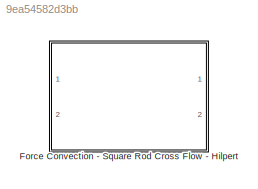
MODEL slx_9ea54582d3bb
KIND library
CONFIG AbsTol = auto
CONFIG FixedStep = auto
CONFIG MaxStep = auto
CONFIG MinStep = auto
CONFIG RelTol = 1e-3
CONFIG SampleTimeConstraint = Unconstrained
CONFIG Solver = ode45
CONFIG SolverMode = Auto
CONFIG SolverName = ode45
CONFIG StartTime = 0.0
CONFIG StopTime = 10.0
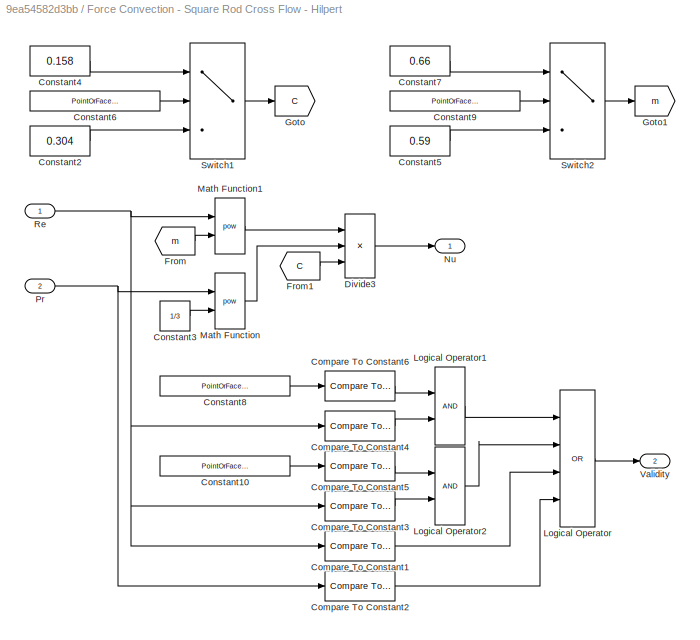
BLOCK [SubSystem] Force Convection - Square Rod Cross Flow - Hilpert
  Ports = [2, 2]
  RequestExecContextInheritance = off
BLOCK [Reference] Force Convection - Square Rod Cross Flow - Hilpert/Compare To Constant1  REF=simulink/Logic and Bit
Operations/Compare
To Constant
  OutDataTypeStr = boolean
  Ports = [1, 1]
  SourceBlock = simulink/Logic and Bit\nOperations/Compare\nTo Constant
  SourceType = Compare To Constant
  ZeroCross = on
  const = 60000
  relop = >
BLOCK [Reference] Force Convection - Square Rod Cross Flow - Hilpert/Compare To Constant2  REF=simulink/Logic and Bit
Operations/Compare
To Constant
  OutDataTypeStr = boolean
  Ports = [1, 1]
  SourceBlock = simulink/Logic and Bit\nOperations/Compare\nTo Constant
  SourceType = Compare To Constant
  ZeroCross = on
  const = 0.7
  relop = <
BLOCK [Reference] Force Convection - Square Rod Cross Flow - Hilpert/Compare To Constant3  REF=simulink/Logic and Bit
Operations/Compare
To Constant
  OutDataTypeStr = boolean
  Ports = [1, 1]
  SourceBlock = simulink/Logic and Bit\nOperations/Compare\nTo Constant
  SourceType = Compare To Constant
  ZeroCross = on
  const = 5000
  relop = <
BLOCK [Reference] Force Convection - Square Rod Cross Flow - Hilpert/Compare To Constant4  REF=simulink/Logic and Bit
Operations/Compare
To Constant
  OutDataTypeStr = boolean
  Ports = [1, 1]
  SourceBlock = simulink/Logic and Bit\nOperations/Compare\nTo Constant
  SourceType = Compare To Constant
  ZeroCross = on
  const = 6000
  relop = <
BLOCK [Reference] Force Convection - Square Rod Cross Flow - Hilpert/Compare To Constant5  REF=simulink/Logic and Bit
Operations/Compare
To Constant
  OutDataTypeStr = boolean
  Ports = [1, 1]
  SourceBlock = simulink/Logic and Bit\nOperations/Compare\nTo Constant
  SourceType = Compare To Constant
  ZeroCross = on
  const = 2
  relop = ==
BLOCK [Reference] Force Convection - Square Rod Cross Flow - Hilpert/Compare To Constant6  REF=simulink/Logic and Bit
Operations/Compare
To Constant
  OutDataTypeStr = boolean
  Ports = [1, 1]
  SourceBlock = simulink/Logic and Bit\nOperations/Compare\nTo Constant
  SourceType = Compare To Constant
  ZeroCross = on
  const = 1
  relop = ==
BLOCK [Constant] Force Convection - Square Rod Cross Flow - Hilpert/Constant10
  Value = PointOrFace_M
BLOCK [Constant] Force Convection - Square Rod Cross Flow - Hilpert/Constant2
  Value = 0.304
BLOCK [Constant] Force Convection - Square Rod Cross Flow - Hilpert/Constant3
  Value = 1/3
BLOCK [Constant] Force Convection - Square Rod Cross Flow - Hilpert/Constant4
  Value = 0.158
BLOCK [Constant] Force Convection - Square Rod Cross Flow - Hilpert/Constant5
  Value = 0.59
BLOCK [Constant] Force Convection - Square Rod Cross Flow - Hilpert/Constant6
  Value = PointOrFace_M
BLOCK [Constant] Force Convection - Square Rod Cross Flow - Hilpert/Constant7
  Value = 0.66
BLOCK [Constant] Force Convection - Square Rod Cross Flow - Hilpert/Constant8
  Value = PointOrFace_M
BLOCK [Constant] Force Convection - Square Rod Cross Flow - Hilpert/Constant9
  Value = PointOrFace_M
BLOCK [Product] Force Convection - Square Rod Cross Flow - Hilpert/Divide3
  InputSameDT = off
  Inputs = ***
  OutDataTypeStr = Inherit: Inherit via internal rule
  Ports = [3, 1]
  RndMeth = Floor
  SaturateOnIntegerOverflow = off
BLOCK [From] Force Convection - Square Rod Cross Flow - Hilpert/From
  GotoTag = m
BLOCK [From] Force Convection - Square Rod Cross Flow - Hilpert/From1
  GotoTag = C
BLOCK [Goto] Force Convection - Square Rod Cross Flow - Hilpert/Goto
  GotoTag = C
BLOCK [Goto] Force Convection - Square Rod Cross Flow - Hilpert/Goto1
  GotoTag = m
BLOCK [Logic] Force Convection - Square Rod Cross Flow - Hilpert/Logical Operator
  AllPortsSameDT = off
  Inputs = 4
  Operator = OR
  OutDataTypeStr = boolean
  Ports = [4, 1]
BLOCK [Logic] Force Convection - Square Rod Cross Flow - Hilpert/Logical Operator1
  AllPortsSameDT = off
  OutDataTypeStr = boolean
  Ports = [2, 1]
BLOCK [Logic] Force Convection - Square Rod Cross Flow - Hilpert/Logical Operator2
  AllPortsSameDT = off
  OutDataTypeStr = boolean
  Ports = [2, 1]
BLOCK [Math] Force Convection - Square Rod Cross Flow - Hilpert/Math Function
  Operator = pow
  Ports = [2, 1]
BLOCK [Math] Force Convection - Square Rod Cross Flow - Hilpert/Math Function1
  Operator = pow
  Ports = [2, 1]
BLOCK [Outport] Force Convection - Square Rod Cross Flow - Hilpert/Nu
  IconDisplay = Port number
BLOCK [Inport] Force Convection - Square Rod Cross Flow - Hilpert/Pr
  IconDisplay = Port number
  Port = 2
BLOCK [Inport] Force Convection - Square Rod Cross Flow - Hilpert/Re
  IconDisplay = Port number
BLOCK [Switch] Force Convection - Square Rod Cross Flow - Hilpert/Switch1
  Criteria = u2 > Threshold
  InputSameDT = off
  SaturateOnIntegerOverflow = off
  Threshold = 1.5
BLOCK [Switch] Force Convection - Square Rod Cross Flow - Hilpert/Switch2
  Criteria = u2 > Threshold
  InputSameDT = off
  SaturateOnIntegerOverflow = off
  Threshold = 1.5
BLOCK [Outport] Force Convection - Square Rod Cross Flow - Hilpert/Validity
  IconDisplay = Port number
  Port = 2
LINE Force Convection - Square Rod Cross Flow - Hilpert/Compare To Constant1:1 -> Force Convection - Square Rod Cross Flow - Hilpert/Logical Operator:3
LINE Force Convection - Square Rod Cross Flow - Hilpert/Compare To Constant2:1 -> Force Convection - Square Rod Cross Flow - Hilpert/Logical Operator:4
LINE Force Convection - Square Rod Cross Flow - Hilpert/Compare To Constant3:1 -> Force Convection - Square Rod Cross Flow - Hilpert/Logical Operator2:2
LINE Force Convection - Square Rod Cross Flow - Hilpert/Compare To Constant4:1 -> Force Convection - Square Rod Cross Flow - Hilpert/Logical Operator1:2
LINE Force Convection - Square Rod Cross Flow - Hilpert/Compare To Constant5:1 -> Force Convection - Square Rod Cross Flow - Hilpert/Logical Operator2:1
LINE Force Convection - Square Rod Cross Flow - Hilpert/Compare To Constant6:1 -> Force Convection - Square Rod Cross Flow - Hilpert/Logical Operator1:1
LINE Force Convection - Square Rod Cross Flow - Hilpert/Constant10:1 -> Force Convection - Square Rod Cross Flow - Hilpert/Compare To Constant5:1
LINE Force Convection - Square Rod Cross Flow - Hilpert/Constant2:1 -> Force Convection - Square Rod Cross Flow - Hilpert/Switch1:3
LINE Force Convection - Square Rod Cross Flow - Hilpert/Constant3:1 -> Force Convection - Square Rod Cross Flow - Hilpert/Math Function:2
LINE Force Convection - Square Rod Cross Flow - Hilpert/Constant4:1 -> Force Convection - Square Rod Cross Flow - Hilpert/Switch1:1
LINE Force Convection - Square Rod Cross Flow - Hilpert/Constant5:1 -> Force Convection - Square Rod Cross Flow - Hilpert/Switch2:3
LINE Force Convection - Square Rod Cross Flow - Hilpert/Constant6:1 -> Force Convection - Square Rod Cross Flow - Hilpert/Switch1:2
LINE Force Convection - Square Rod Cross Flow - Hilpert/Constant7:1 -> Force Convection - Square Rod Cross Flow - Hilpert/Switch2:1
LINE Force Convection - Square Rod Cross Flow - Hilpert/Constant8:1 -> Force Convection - Square Rod Cross Flow - Hilpert/Compare To Constant6:1
LINE Force Convection - Square Rod Cross Flow - Hilpert/Constant9:1 -> Force Convection - Square Rod Cross Flow - Hilpert/Switch2:2
LINE Force Convection - Square Rod Cross Flow - Hilpert/Divide3:1 -> Force Convection - Square Rod Cross Flow - Hilpert/Nu:1
LINE Force Convection - Square Rod Cross Flow - Hilpert/From1:1 -> Force Convection - Square Rod Cross Flow - Hilpert/Divide3:3
LINE Force Convection - Square Rod Cross Flow - Hilpert/From:1 -> Force Convection - Square Rod Cross Flow - Hilpert/Math Function1:2
LINE Force Convection - Square Rod Cross Flow - Hilpert/Logical Operator1:1 -> Force Convection - Square Rod Cross Flow - Hilpert/Logical Operator:1
LINE Force Convection - Square Rod Cross Flow - Hilpert/Logical Operator2:1 -> Force Convection - Square Rod Cross Flow - Hilpert/Logical Operator:2
LINE Force Convection - Square Rod Cross Flow - Hilpert/Logical Operator:1 -> Force Convection - Square Rod Cross Flow - Hilpert/Validity:1
LINE Force Convection - Square Rod Cross Flow - Hilpert/Math Function1:1 -> Force Convection - Square Rod Cross Flow - Hilpert/Divide3:1
LINE Force Convection - Square Rod Cross Flow - Hilpert/Math Function:1 -> Force Convection - Square Rod Cross Flow - Hilpert/Divide3:2
NET Force Convection - Square Rod Cross Flow - Hilpert/Pr:1 -> Force Convection - Square Rod Cross Flow - Hilpert/Compare To Constant2:1, Force Convection - Square Rod Cross Flow - Hilpert/Math Function:1
NET Force Convection - Square Rod Cross Flow - Hilpert/Re:1 -> Force Convection - Square Rod Cross Flow - Hilpert/Compare To Constant1:1, Force Convection - Square Rod Cross Flow - Hilpert/Compare To Constant3:1, Force Convection - Square Rod Cross Flow - Hilpert/Compare To Constant4:1, Force Convection - Square Rod Cross Flow - Hilpert/Math Function1:1
LINE Force Convection - Square Rod Cross Flow - Hilpert/Switch1:1 -> Force Convection - Square Rod Cross Flow - Hilpert/Goto:1
LINE Force Convection - Square Rod Cross Flow - Hilpert/Switch2:1 -> Force Convection - Square Rod Cross Flow - Hilpert/Goto1:1
note: NET lines group one-source signal fan-out (src -> all destinations, sorted); 1:1 wires keep LINE
